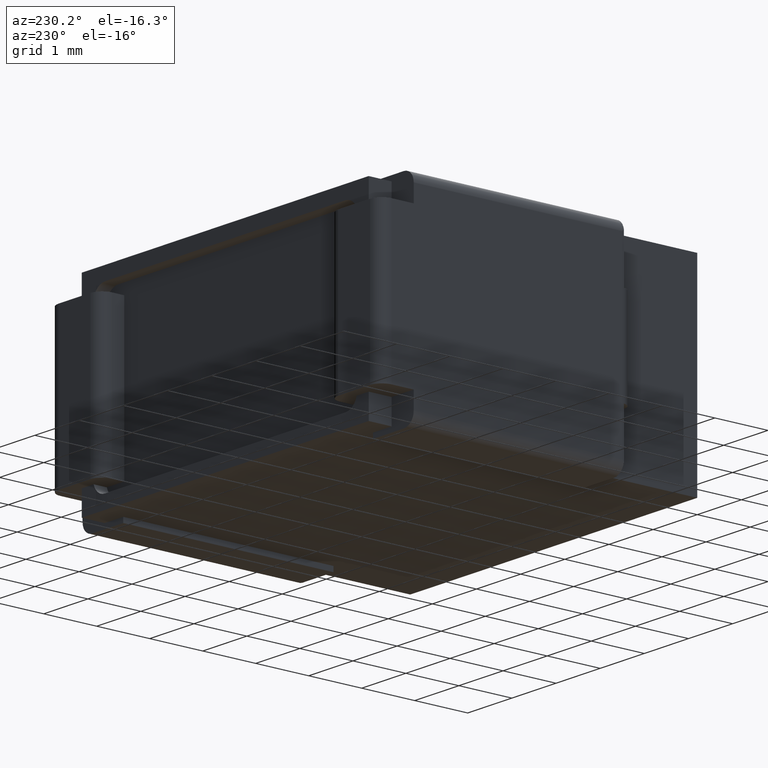
[diagram: clean part render]
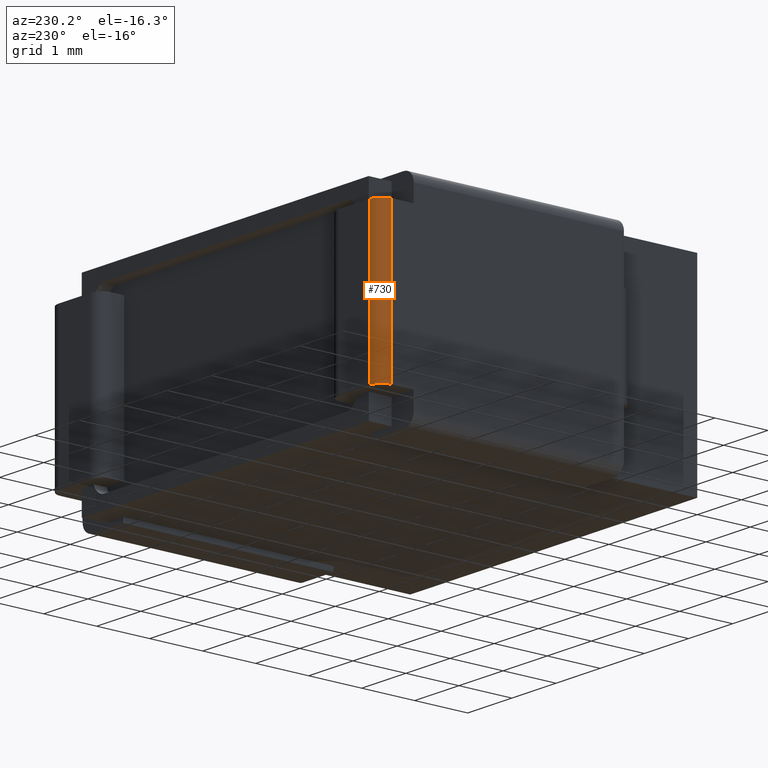
[diagram: same view with one face highlighted and labeled with its STEP entity id]
A machine part, auxiliary view. The second image highlights one B-rep face of the part: STEP entity #730.
In plain terms, the highlighted cylindrical surface (edge-blend (fillet) strip) has radius 0.222 mm, axis along (0, 0, 1).
Its self-contained STEP definition (entity closure, byte-faithful):
#57 = CIRCLE ( 'NONE', #499, 0.2219999999999999751 ) ;
#177 = VERTEX_POINT ( 'NONE', #4387 ) ;
#187 = DIRECTION ( 'NONE',  ( -0.000000000000000000, -0.000000000000000000, -1.000000000000000000 ) ) ;
#284 = EDGE_CURVE ( 'NONE', #3402, #1718, #2829, .T. ) ;
#295 = CARTESIAN_POINT ( 'NONE',  ( -0.2780000000000047988, 6.185426800507432432, -0.4439999999999999503 ) ) ;
#499 = AXIS2_PLACEMENT_3D ( 'NONE', #295, #4229, #1598 ) ;
#662 = DIRECTION ( 'NONE',  ( 0.000000000000000000, 0.000000000000000000, 1.000000000000000000 ) ) ;
#695 = EDGE_CURVE ( 'NONE', #177, #3402, #3804, .T. ) ;
#730 = ADVANCED_FACE ( 'NONE', ( #1640 ), #1942, .T. ) ;
#892 = ORIENTED_EDGE ( 'NONE', *, *, #284, .T. ) ;
#990 = CARTESIAN_POINT ( 'NONE',  ( -0.5000000000000047740, 6.185426800507432432, -0.4439999999999999503 ) ) ;
#1290 = DIRECTION ( 'NONE',  ( -1.000000000000000000, 0.000000000000000000, 0.000000000000000000 ) ) ;
#1318 = CARTESIAN_POINT ( 'NONE',  ( -0.2780000000000047988, 6.407426800507432851, -3.256000000000000227 ) ) ;
#1598 = DIRECTION ( 'NONE',  ( -1.000000000000000000, 0.000000000000000000, 0.000000000000000000 ) ) ;
#1620 = LINE ( 'NONE', #990, #2953 ) ;
#1640 = FACE_OUTER_BOUND ( 'NONE', #1853, .T. ) ;
#1718 = VERTEX_POINT ( 'NONE', #3284 ) ;
#1853 = EDGE_LOOP ( 'NONE', ( #892, #3595, #3482, #3234 ) ) ;
#1929 = AXIS2_PLACEMENT_3D ( 'NONE', #3399, #3447, #1290 ) ;
#1942 = CYLINDRICAL_SURFACE ( 'NONE', #1929, 0.2219999999999999751 ) ;
#1985 = DIRECTION ( 'NONE',  ( -1.000000000000000000, 7.814069711607240628E-15, 0.000000000000000000 ) ) ;
#2465 = CARTESIAN_POINT ( 'NONE',  ( -0.5000000000000047740, 6.185426800507432432, -0.4439999999999999503 ) ) ;
#2788 = DIRECTION ( 'NONE',  ( 0.000000000000000000, 0.000000000000000000, 1.000000000000000000 ) ) ;
#2829 = CIRCLE ( 'NONE', #3655, 0.2219999999999999751 ) ;
#2953 = VECTOR ( 'NONE', #662, 1000.000000000000000 ) ;
#3138 = CARTESIAN_POINT ( 'NONE',  ( -0.2780000000000047988, 6.185426800507432432, -3.256000000000000227 ) ) ;
#3151 = CARTESIAN_POINT ( 'NONE',  ( -0.2780000000000047988, 6.407426800507432851, -3.256000000000000227 ) ) ;
#3234 = ORIENTED_EDGE ( 'NONE', *, *, #695, .T. ) ;
#3284 = CARTESIAN_POINT ( 'NONE',  ( -0.5000000000000047740, 6.185426800507432432, -3.256000000000000227 ) ) ;
#3399 = CARTESIAN_POINT ( 'NONE',  ( -0.2780000000000047988, 6.185426800507432432, -0.4439999999999999503 ) ) ;
#3402 = VERTEX_POINT ( 'NONE', #3151 ) ;
#3447 = DIRECTION ( 'NONE',  ( 0.000000000000000000, 0.000000000000000000, 1.000000000000000000 ) ) ;
#3482 = ORIENTED_EDGE ( 'NONE', *, *, #3933, .T. ) ;
#3581 = VECTOR ( 'NONE', #187, 1000.000000000000000 ) ;
#3595 = ORIENTED_EDGE ( 'NONE', *, *, #3981, .T. ) ;
#3655 = AXIS2_PLACEMENT_3D ( 'NONE', #3138, #2788, #1985 ) ;
#3804 = LINE ( 'NONE', #1318, #3581 ) ;
#3933 = EDGE_CURVE ( 'NONE', #4428, #177, #57, .T. ) ;
#3981 = EDGE_CURVE ( 'NONE', #1718, #4428, #1620, .T. ) ;
#4229 = DIRECTION ( 'NONE',  ( -0.000000000000000000, -0.000000000000000000, -1.000000000000000000 ) ) ;
#4387 = CARTESIAN_POINT ( 'NONE',  ( -0.2780000000000047988, 6.407426800507432851, -0.4439999999999999503 ) ) ;
#4428 = VERTEX_POINT ( 'NONE', #2465 ) ;